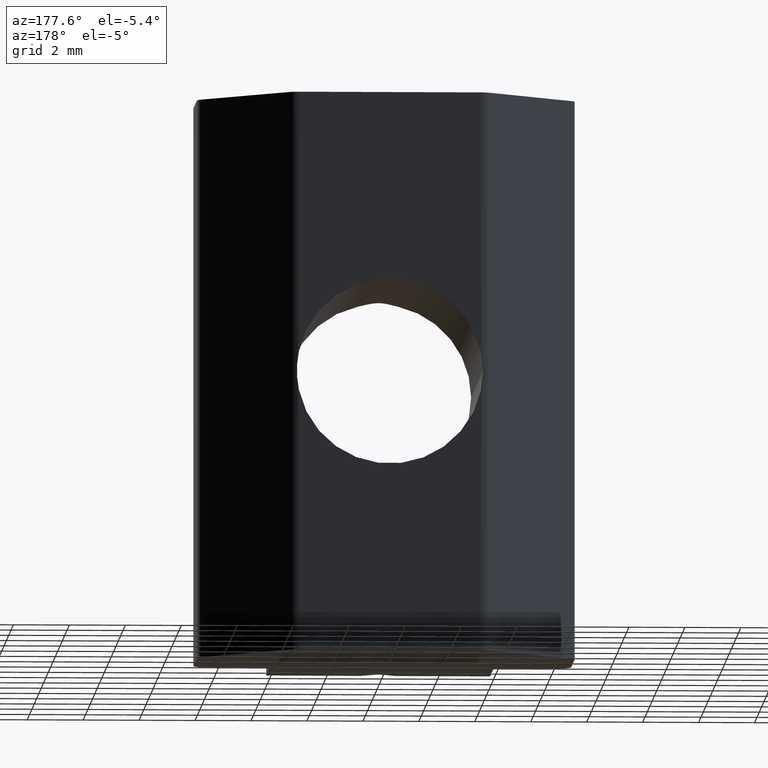
[diagram: clean part render]
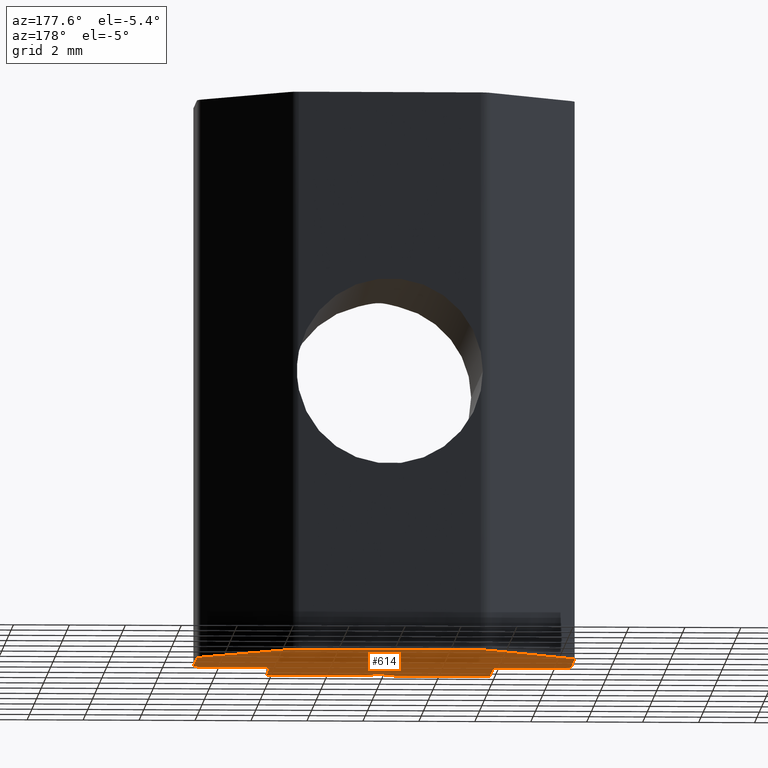
[diagram: same view with one face highlighted and labeled with its STEP entity id]
A machine part, auxiliary view. The second image highlights one B-rep face of the part: STEP entity #614.
In plain terms, the highlighted planar face has unit normal (0, 0, 1).
Its self-contained STEP definition (entity closure, byte-faithful):
#22=PLANE('',#682);
#48=FACE_OUTER_BOUND('',#79,.T.);
#79=EDGE_LOOP('',(#483,#484,#485,#486,#487,#488,#489,#490,#491,#492,#493,
#494,#495,#496,#497,#498,#499,#500,#501,#502,#503,#504));
#103=LINE('',#989,#160);
#107=LINE('',#997,#164);
#114=LINE('',#1018,#171);
#126=LINE('',#1048,#183);
#127=LINE('',#1051,#184);
#128=LINE('',#1053,#185);
#129=LINE('',#1057,#186);
#130=LINE('',#1061,#187);
#131=LINE('',#1064,#188);
#132=LINE('',#1066,#189);
#133=LINE('',#1070,#190);
#134=LINE('',#1074,#191);
#135=LINE('',#1075,#192);
#160=VECTOR('',#740,10.);
#164=VECTOR('',#746,10.);
#171=VECTOR('',#771,10.);
#183=VECTOR('',#801,10.);
#184=VECTOR('',#804,10.);
#185=VECTOR('',#805,10.);
#186=VECTOR('',#808,10.);
#187=VECTOR('',#811,10.);
#188=VECTOR('',#814,10.);
#189=VECTOR('',#815,10.);
#190=VECTOR('',#818,10.);
#191=VECTOR('',#821,10.);
#192=VECTOR('',#822,10.);
#218=CIRCLE('',#661,0.25);
#219=CIRCLE('',#665,0.25);
#221=CIRCLE('',#669,0.249999999999999);
#224=CIRCLE('',#676,0.5);
#226=CIRCLE('',#683,0.499999999999999);
#227=CIRCLE('',#684,0.500000000000005);
#228=CIRCLE('',#685,0.499999999999994);
#229=CIRCLE('',#686,0.500000000000001);
#230=CIRCLE('',#687,0.499999999999999);
#263=VERTEX_POINT('',#980);
#264=VERTEX_POINT('',#982);
#265=VERTEX_POINT('',#986);
#266=VERTEX_POINT('',#988);
#269=VERTEX_POINT('',#996);
#270=VERTEX_POINT('',#1000);
#273=VERTEX_POINT('',#1010);
#277=VERTEX_POINT('',#1026);
#278=VERTEX_POINT('',#1028);
#283=VERTEX_POINT('',#1046);
#284=VERTEX_POINT('',#1050);
#285=VERTEX_POINT('',#1052);
#286=VERTEX_POINT('',#1054);
#287=VERTEX_POINT('',#1056);
#288=VERTEX_POINT('',#1058);
#289=VERTEX_POINT('',#1060);
#290=VERTEX_POINT('',#1062);
#291=VERTEX_POINT('',#1065);
#292=VERTEX_POINT('',#1067);
#293=VERTEX_POINT('',#1069);
#294=VERTEX_POINT('',#1071);
#295=VERTEX_POINT('',#1073);
#327=EDGE_CURVE('',#264,#263,#218,.T.);
#330=EDGE_CURVE('',#266,#265,#103,.T.);
#334=EDGE_CURVE('',#269,#264,#107,.T.);
#336=EDGE_CURVE('',#270,#269,#219,.T.);
#342=EDGE_CURVE('',#265,#273,#221,.T.);
#345=EDGE_CURVE('',#273,#270,#114,.T.);
#350=EDGE_CURVE('',#278,#277,#224,.T.);
#360=EDGE_CURVE('',#263,#283,#126,.T.);
#361=EDGE_CURVE('',#283,#284,#127,.T.);
#362=EDGE_CURVE('',#284,#285,#128,.T.);
#363=EDGE_CURVE('',#285,#286,#226,.T.);
#364=EDGE_CURVE('',#286,#287,#129,.T.);
#365=EDGE_CURVE('',#287,#288,#227,.T.);
#366=EDGE_CURVE('',#288,#289,#130,.T.);
#367=EDGE_CURVE('',#289,#290,#228,.T.);
#368=EDGE_CURVE('',#290,#278,#131,.T.);
#369=EDGE_CURVE('',#277,#291,#132,.T.);
#370=EDGE_CURVE('',#291,#292,#229,.T.);
#371=EDGE_CURVE('',#292,#293,#133,.T.);
#372=EDGE_CURVE('',#293,#294,#230,.T.);
#373=EDGE_CURVE('',#294,#295,#134,.T.);
#374=EDGE_CURVE('',#295,#266,#135,.T.);
#483=ORIENTED_EDGE('',*,*,#342,.T.);
#484=ORIENTED_EDGE('',*,*,#345,.T.);
#485=ORIENTED_EDGE('',*,*,#336,.T.);
#486=ORIENTED_EDGE('',*,*,#334,.T.);
#487=ORIENTED_EDGE('',*,*,#327,.T.);
#488=ORIENTED_EDGE('',*,*,#360,.T.);
#489=ORIENTED_EDGE('',*,*,#361,.T.);
#490=ORIENTED_EDGE('',*,*,#362,.T.);
#491=ORIENTED_EDGE('',*,*,#363,.T.);
#492=ORIENTED_EDGE('',*,*,#364,.T.);
#493=ORIENTED_EDGE('',*,*,#365,.T.);
#494=ORIENTED_EDGE('',*,*,#366,.T.);
#495=ORIENTED_EDGE('',*,*,#367,.T.);
#496=ORIENTED_EDGE('',*,*,#368,.T.);
#497=ORIENTED_EDGE('',*,*,#350,.T.);
#498=ORIENTED_EDGE('',*,*,#369,.T.);
#499=ORIENTED_EDGE('',*,*,#370,.T.);
#500=ORIENTED_EDGE('',*,*,#371,.T.);
#501=ORIENTED_EDGE('',*,*,#372,.T.);
#502=ORIENTED_EDGE('',*,*,#373,.T.);
#503=ORIENTED_EDGE('',*,*,#374,.T.);
#504=ORIENTED_EDGE('',*,*,#330,.T.);
#614=ADVANCED_FACE('',(#48),#22,.F.);
#661=AXIS2_PLACEMENT_3D('',#983,#734,#735);
#665=AXIS2_PLACEMENT_3D('',#1001,#750,#751);
#669=AXIS2_PLACEMENT_3D('',#1012,#762,#763);
#676=AXIS2_PLACEMENT_3D('',#1029,#781,#782);
#682=AXIS2_PLACEMENT_3D('',#1049,#802,#803);
#683=AXIS2_PLACEMENT_3D('',#1055,#806,#807);
#684=AXIS2_PLACEMENT_3D('',#1059,#809,#810);
#685=AXIS2_PLACEMENT_3D('',#1063,#812,#813);
#686=AXIS2_PLACEMENT_3D('',#1068,#816,#817);
#687=AXIS2_PLACEMENT_3D('',#1072,#819,#820);
#734=DIRECTION('center_axis',(0.,0.,-1.));
#735=DIRECTION('ref_axis',(5.55111512312579E-16,1.,0.));
#740=DIRECTION('',(-1.,0.,0.));
#746=DIRECTION('',(-0.707106781186547,-0.707106781186548,0.));
#750=DIRECTION('center_axis',(0.,0.,1.));
#751=DIRECTION('ref_axis',(0.707106781186547,0.707106781186548,0.));
#762=DIRECTION('center_axis',(0.,0.,-1.));
#763=DIRECTION('ref_axis',(0.707106781186548,0.707106781186547,0.));
#771=DIRECTION('',(-0.707106781186545,0.707106781186549,0.));
#781=DIRECTION('center_axis',(0.,0.,-1.));
#782=DIRECTION('ref_axis',(0.707106781186548,0.707106781186547,0.));
#801=DIRECTION('',(-1.,0.,0.));
#802=DIRECTION('center_axis',(0.,0.,1.));
#803=DIRECTION('ref_axis',(1.,0.,0.));
#804=DIRECTION('',(0.,1.,0.));
#805=DIRECTION('',(-1.,0.,0.));
#806=DIRECTION('center_axis',(0.,0.,-1.));
#807=DIRECTION('ref_axis',(-1.,0.,0.));
#808=DIRECTION('',(0.,1.,0.));
#809=DIRECTION('center_axis',(0.,0.,-1.));
#810=DIRECTION('ref_axis',(-0.707106781186549,0.707106781186546,0.));
#811=DIRECTION('',(0.707106781186547,0.707106781186548,0.));
#812=DIRECTION('center_axis',(0.,0.,-1.));
#813=DIRECTION('ref_axis',(0.,1.,0.));
#814=DIRECTION('',(1.,0.,0.));
#815=DIRECTION('',(0.707106781186547,-0.707106781186548,0.));
#816=DIRECTION('center_axis',(0.,0.,-1.));
#817=DIRECTION('ref_axis',(1.,-1.11022302462516E-15,0.));
#818=DIRECTION('',(3.70074341541719E-16,-1.,0.));
#819=DIRECTION('center_axis',(0.,0.,-1.));
#820=DIRECTION('ref_axis',(0.,-1.,0.));
#821=DIRECTION('',(-1.,0.,0.));
#822=DIRECTION('',(0.,-1.,0.));
#980=CARTESIAN_POINT('',(-0.707106781186547,-3.,-10.));
#982=CARTESIAN_POINT('',(-0.53033008588991,-2.92677669529664,-10.));
#983=CARTESIAN_POINT('Origin',(-0.707106781186547,-2.75,-10.));
#986=CARTESIAN_POINT('',(0.707106781186547,-3.,-10.));
#988=CARTESIAN_POINT('',(4.,-3.,-10.));
#989=CARTESIAN_POINT('',(-4.,-3.,-10.));
#996=CARTESIAN_POINT('',(-0.176776695296637,-2.57322330470336,-10.));
#997=CARTESIAN_POINT('',(0.96724365896336,-1.42920295044337,-10.));
#1000=CARTESIAN_POINT('',(0.176776695296638,-2.57322330470336,-10.));
#1001=CARTESIAN_POINT('Origin',(-4.71467650385233E-30,-2.75,-10.));
#1010=CARTESIAN_POINT('',(0.530330085889911,-2.92677669529664,-10.));
#1012=CARTESIAN_POINT('Origin',(0.707106781186547,-2.75,-10.));
#1018=CARTESIAN_POINT('',(-0.790466963666722,-1.60597964574,-10.));
#1026=CARTESIAN_POINT('',(3.60355339059328,6.85355339059327,-10.));
#1028=CARTESIAN_POINT('',(3.25,7.,-10.));
#1029=CARTESIAN_POINT('Origin',(3.25,6.5,-10.));
#1046=CARTESIAN_POINT('',(-4.,-3.,-10.));
#1048=CARTESIAN_POINT('',(-4.,-3.,-10.));
#1049=CARTESIAN_POINT('Origin',(0.,1.82608141703999,-10.));
#1050=CARTESIAN_POINT('',(-4.,0.,-10.));
#1051=CARTESIAN_POINT('',(-4.,0.,-10.));
#1052=CARTESIAN_POINT('',(-6.25,0.,-10.));
#1053=CARTESIAN_POINT('',(-6.25,0.,-10.));
#1054=CARTESIAN_POINT('',(-6.75,0.5,-10.));
#1055=CARTESIAN_POINT('Origin',(-6.25,0.5,-10.));
#1056=CARTESIAN_POINT('',(-6.75,3.5,-10.));
#1057=CARTESIAN_POINT('',(-6.75,3.5,-10.));
#1058=CARTESIAN_POINT('',(-6.60355339059328,3.85355339059327,-10.));
#1059=CARTESIAN_POINT('Origin',(-6.25,3.5,-10.));
#1060=CARTESIAN_POINT('',(-3.60355339059328,6.85355339059327,-10.));
#1061=CARTESIAN_POINT('',(-3.60355339059328,6.85355339059327,-10.));
#1062=CARTESIAN_POINT('',(-3.25,7.,-10.));
#1063=CARTESIAN_POINT('Origin',(-3.25,6.5,-10.));
#1064=CARTESIAN_POINT('',(3.25,7.,-10.));
#1065=CARTESIAN_POINT('',(6.60355339059327,3.85355339059327,-10.));
#1066=CARTESIAN_POINT('',(6.60355339059327,3.85355339059327,-10.));
#1067=CARTESIAN_POINT('',(6.75,3.5,-10.));
#1068=CARTESIAN_POINT('Origin',(6.25,3.5,-10.));
#1069=CARTESIAN_POINT('',(6.75,0.5,-10.));
#1070=CARTESIAN_POINT('',(6.75,0.5,-10.));
#1071=CARTESIAN_POINT('',(6.25,0.,-10.));
#1072=CARTESIAN_POINT('Origin',(6.25,0.5,-10.));
#1073=CARTESIAN_POINT('',(4.,0.,-10.));
#1074=CARTESIAN_POINT('',(4.,0.,-10.));
#1075=CARTESIAN_POINT('',(4.,-3.,-10.));